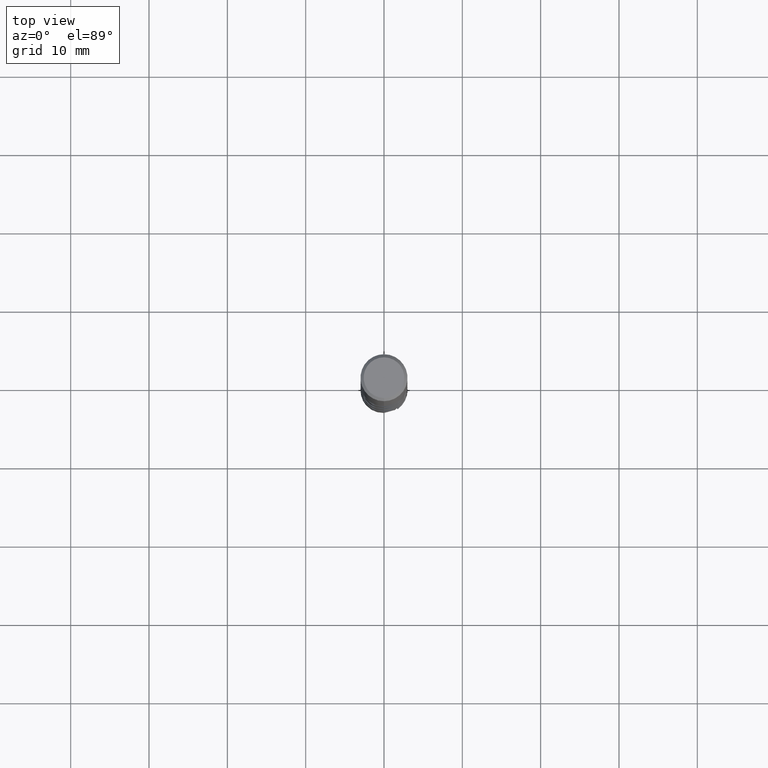
[diagram: clean part render]
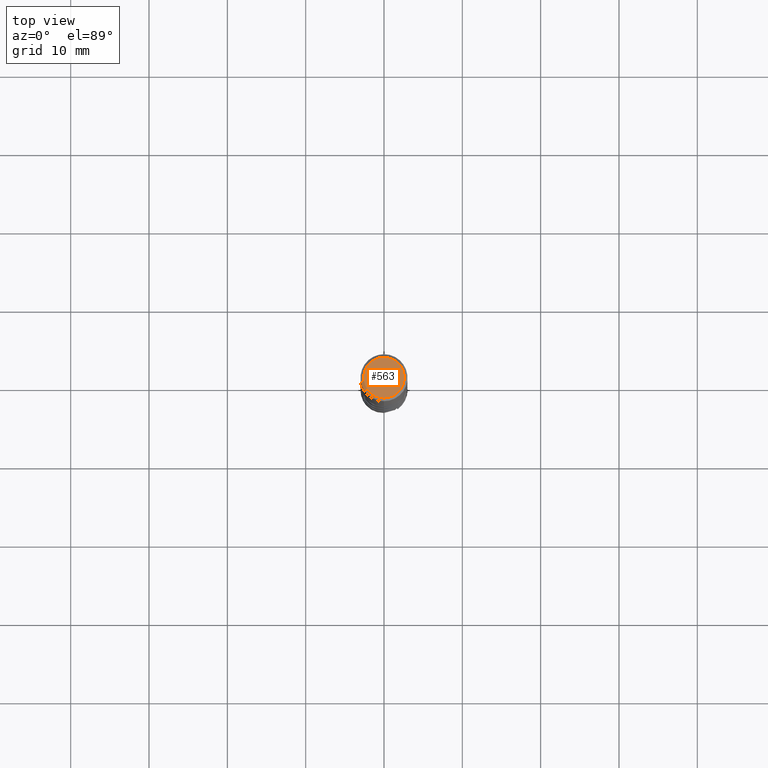
[diagram: same view with one face highlighted and labeled with its STEP entity id]
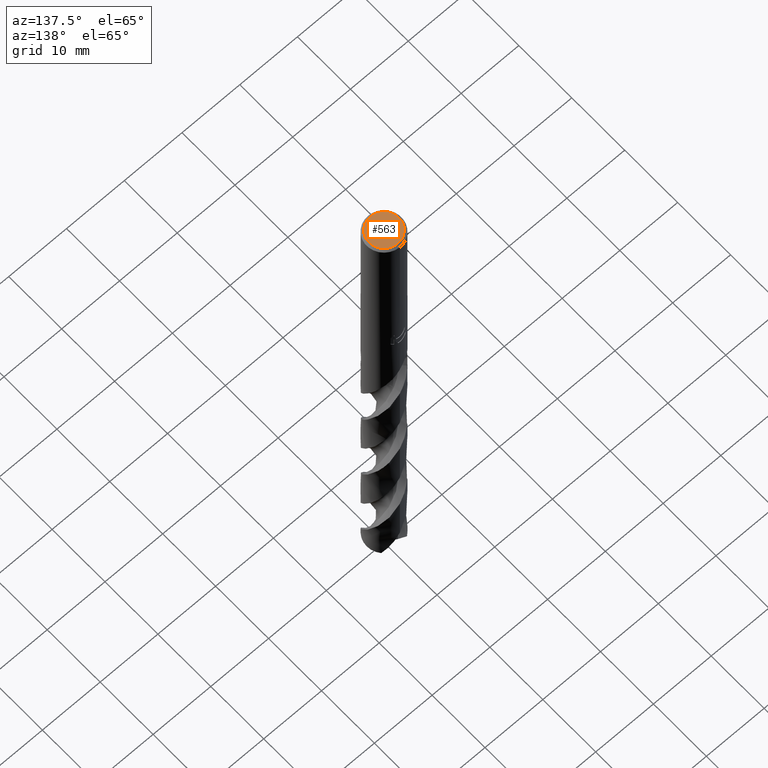
[diagram: same view with one face highlighted and labeled with its STEP entity id]
A machine part, top view. The second image highlights one B-rep face of the part: STEP entity #563.
A second angle (auxiliary view) of the same face is appended — the face is thin or edge-on in the first view.
In plain terms, the highlighted planar face has unit normal (-0, 0, 1).
Its self-contained STEP definition (entity closure, byte-faithful):
#431=VERTEX_POINT('',#965);
#459=EDGE_CURVE('',#713,#431,#996,.T.);
#471=EDGE_CURVE('',#431,#713,#1010,.T.);
#563=ADVANCED_FACE('',(#1106),#1107,.T.);
#713=VERTEX_POINT('',#1273);
#965=CARTESIAN_POINT('',(0.0,2.6,0.0));
#996=CIRCLE('',#4658,2.6);
#1010=CIRCLE('',#4690,2.6);
#1106=FACE_OUTER_BOUND('',#6400,.T.);
#1107=PLANE('',#6401);
#1273=CARTESIAN_POINT('',(3.18397651993818E-016,-2.6,0.0));
#4658=AXIS2_PLACEMENT_3D('',#11775,#11776,#11777);
#4690=AXIS2_PLACEMENT_3D('',#11797,#11798,#11799);
#6400=EDGE_LOOP('',(#11845,#11846));
#6401=AXIS2_PLACEMENT_3D('',#11847,#11848,#11849);
#11775=CARTESIAN_POINT('',(0.0,0.0,0.0));
#11776=DIRECTION('',(0.0,0.0,-1.0));
#11777=DIRECTION('',(0.0,1.0,0.0));
#11797=CARTESIAN_POINT('',(0.0,0.0,0.0));
#11798=DIRECTION('',(0.0,0.0,-1.0));
#11799=DIRECTION('',(0.0,1.0,0.0));
#11845=ORIENTED_EDGE('',*,*,#471,.F.);
#11846=ORIENTED_EDGE('',*,*,#459,.F.);
#11847=CARTESIAN_POINT('',(0.0,1.3,0.0));
#11848=DIRECTION('',(-0.0,0.0,1.0));
#11849=DIRECTION('',(0.0,-1.0,0.0));